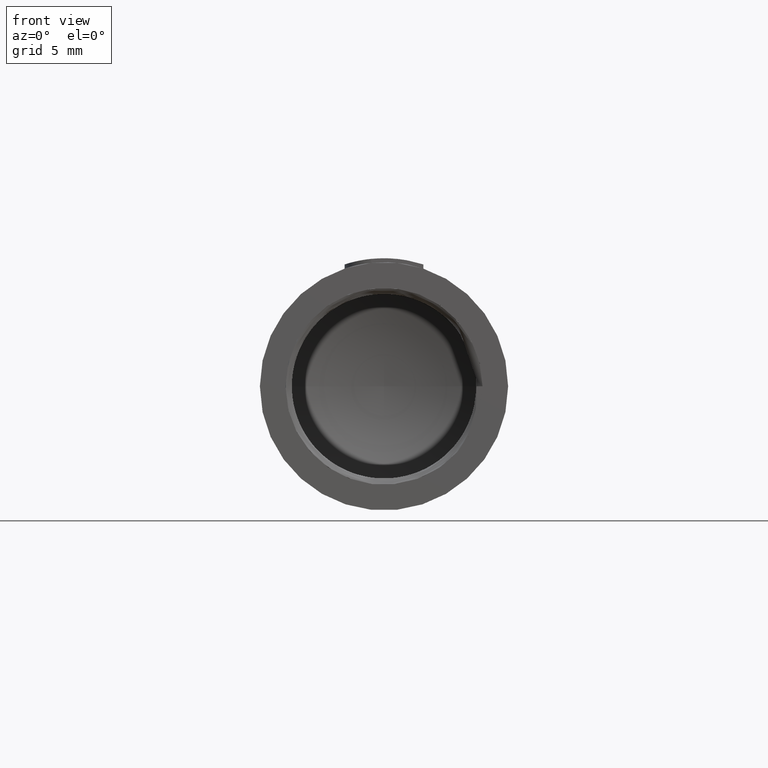
[diagram: clean part render]
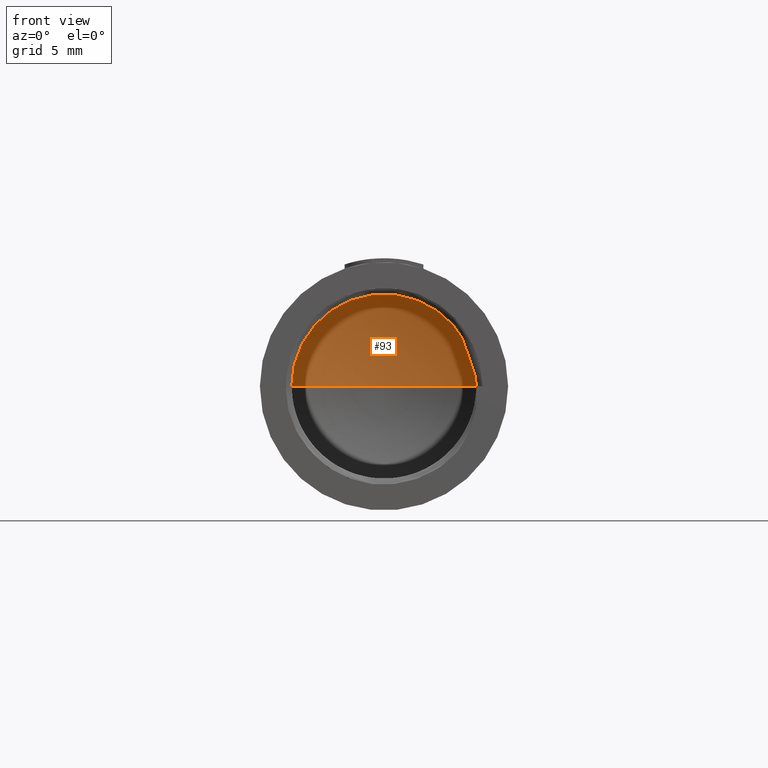
[diagram: same view with one face highlighted and labeled with its STEP entity id]
A machine part, front view. The second image highlights one B-rep face of the part: STEP entity #93.
In plain terms, the highlighted toroidal blend (fillet) surface has major radius 0.2003 mm and minor (blend) radius 12 mm.
Its self-contained STEP definition (entity closure, byte-faithful):
#93=ADVANCED_FACE('',(#187),#188,.F.);
#187=FACE_OUTER_BOUND('',#2258,.T.);
#188=TOROIDAL_SURFACE('',#2259,0.200334472480497,12.0);
#2258=EDGE_LOOP('',(#2470,#2471,#2472));
#2259=AXIS2_PLACEMENT_3D('',#2473,#2474,#2475);
#2470=ORIENTED_EDGE('',*,*,#3114,.F.);
#2471=ORIENTED_EDGE('',*,*,#3115,.F.);
#2472=ORIENTED_EDGE('',*,*,#3101,.T.);
#2473=CARTESIAN_POINT('',(0.0,19.0016723624025,0.0));
#2474=DIRECTION('',(0.0,-1.0,0.0));
#2475=DIRECTION('',(1.0,0.0,-6.12323399573677E-17));
#3101=EDGE_CURVE('',#3319,#3323,#3325,.T.);
#3114=EDGE_CURVE('',#3346,#3323,#3347,.T.);
#3115=EDGE_CURVE('',#3319,#3346,#3348,.T.);
#3319=VERTEX_POINT('',#4643);
#3323=VERTEX_POINT('',#4647);
#3325=CIRCLE('',#4649,4.68694197945737);
#3346=VERTEX_POINT('',#4674);
#3347=CIRCLE('',#4675,12.0);
#3348=CIRCLE('',#4676,12.0);
#4643=CARTESIAN_POINT('',(4.68694197945737,30.1313782470312,-2.86992424646592E-16));
#4647=CARTESIAN_POINT('',(-4.68694197945737,30.1313782470312,8.60977273939774E-16));
#4649=AXIS2_PLACEMENT_3D('',#5099,#5100,#5101);
#4674=CARTESIAN_POINT('',(1.85887060822817E-31,31.0,3.03576608295941E-15));
#4675=AXIS2_PLACEMENT_3D('',#5130,#5131,#5132);
#4676=AXIS2_PLACEMENT_3D('',#5133,#5134,#5135);
#5099=CARTESIAN_POINT('',(0.0,30.1313782470312,0.0));
#5100=DIRECTION('',(0.0,-1.0,0.0));
#5101=DIRECTION('',(1.0,0.0,-6.12323399573677E-17));
#5130=CARTESIAN_POINT('',(-0.200334472480497,19.0016723624025,3.68008455723171E-17));
#5131=DIRECTION('',(1.83697019872103E-16,0.0,1.0));
#5132=DIRECTION('',(-1.0,0.0,1.83697019872103E-16));
#5133=CARTESIAN_POINT('',(0.200334472480497,19.0016723624025,-3.68008455723171E-17));
#5134=DIRECTION('',(1.83697019872103E-16,0.0,1.0));
#5135=DIRECTION('',(1.0,-0.0,-1.83697019872103E-16));